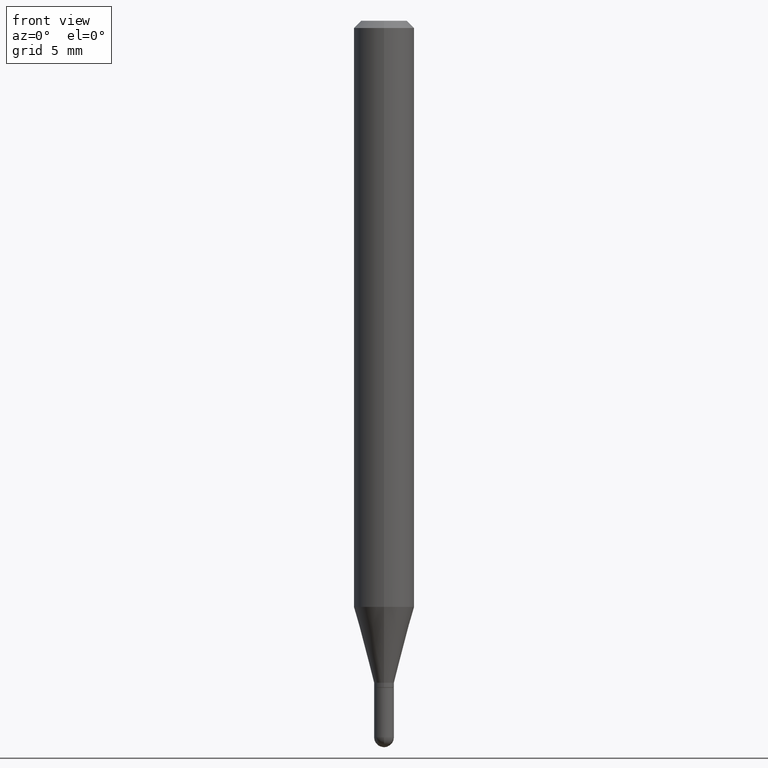
[diagram: clean part render]
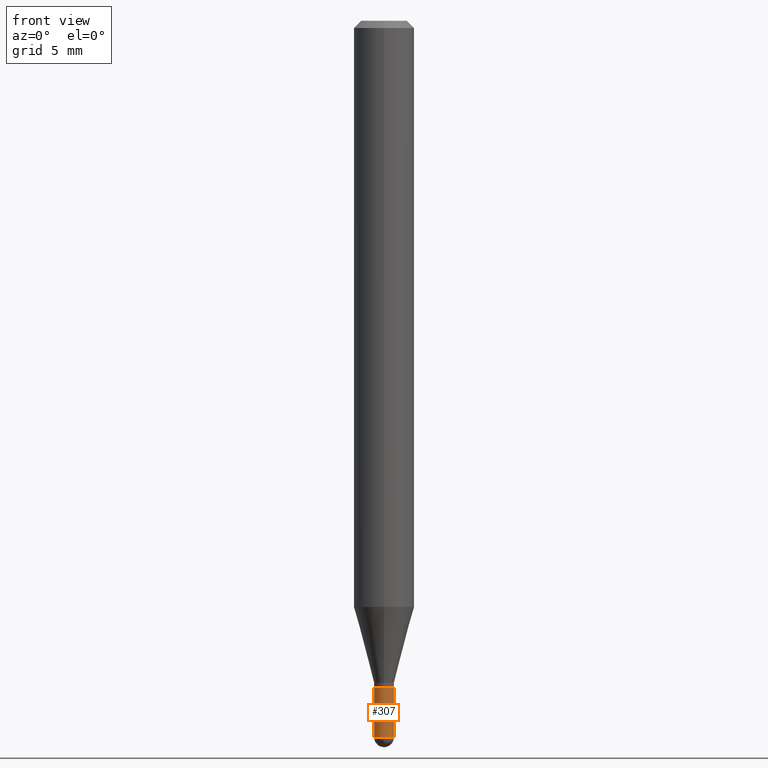
[diagram: same view with one face highlighted and labeled with its STEP entity id]
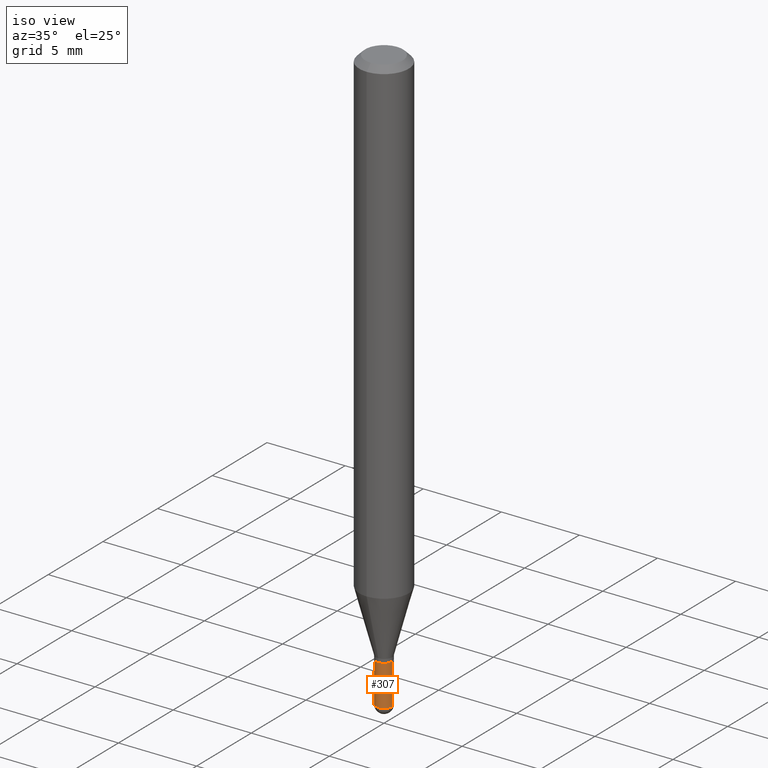
[diagram: same view with one face highlighted and labeled with its STEP entity id]
A machine part, front view. The second image highlights one B-rep face of the part: STEP entity #307.
A second angle (iso view) of the same face is appended — the face is thin or edge-on in the first view.
In plain terms, the highlighted cylindrical surface (edge-blend (fillet) strip) has radius 0.5207 mm, axis along (-0, 0, 1).
Its self-contained STEP definition (entity closure, byte-faithful):
#1 = VERTEX_POINT ( 'NONE', #176 ) ;
#15 = VERTEX_POINT ( 'NONE', #490 ) ;
#30 = LINE ( 'NONE', #111, #58 ) ;
#41 = ORIENTED_EDGE ( 'NONE', *, *, #389, .T. ) ;
#43 = CARTESIAN_POINT ( 'NONE',  ( 3.618071098750910124E-29, -5.165646640818434953E-15, -1.479500000000000259 ) ) ;
#57 = CIRCLE ( 'NONE', #473, 0.02049999999999999392 ) ;
#58 = VECTOR ( 'NONE', #122, 39.37007874015748143 ) ;
#78 = EDGE_LOOP ( 'NONE', ( #163, #85, #41, #249, #81 ) ) ;
#81 = ORIENTED_EDGE ( 'NONE', *, *, #457, .F. ) ;
#85 = ORIENTED_EDGE ( 'NONE', *, *, #278, .T. ) ;
#92 = CIRCLE ( 'NONE', #503, 0.02049999999999999392 ) ;
#111 = CARTESIAN_POINT ( 'NONE',  ( 0.02049999999999999739, -1.431507348925684695E-16, 9.996162390381665713E-31 ) ) ;
#122 = DIRECTION ( 'NONE',  ( -2.445468806185136877E-29, 3.491481338843145188E-15, 1.000000000000000000 ) ) ;
#150 = CARTESIAN_POINT ( 'NONE',  ( -0.02050000000000000086, -4.841046961371903070E-15, -1.377000000000000002 ) ) ;
#152 = CARTESIAN_POINT ( 'NONE',  ( 0.000000000000000000, 0.000000000000000000, 0.000000000000000000 ) ) ;
#156 = DIRECTION ( 'NONE',  ( -2.445468806185136597E-29, 3.491481338843145583E-15, 1.000000000000000000 ) ) ;
#160 = DIRECTION ( 'NONE',  ( 1.000000000000000000, -6.982962677686264344E-15, 0.000000000000000000 ) ) ;
#163 = ORIENTED_EDGE ( 'NONE', *, *, #351, .F. ) ;
#168 = CIRCLE ( 'NONE', #286, 0.02050000000000000086 ) ;
#176 = CARTESIAN_POINT ( 'NONE',  ( 0.02049999999999999392, -5.129858957095291369E-15, -1.479500000000000259 ) ) ;
#224 = VERTEX_POINT ( 'NONE', #453 ) ;
#234 = VERTEX_POINT ( 'NONE', #150 ) ;
#249 = ORIENTED_EDGE ( 'NONE', *, *, #277, .T. ) ;
#250 = DIRECTION ( 'NONE',  ( 1.000000000000000000, -6.982962677686261977E-15, 0.000000000000000000 ) ) ;
#274 = DIRECTION ( 'NONE',  ( 1.000000000000000000, -6.982962677686264344E-15, 0.000000000000000000 ) ) ;
#277 = EDGE_CURVE ( 'NONE', #1, #342, #30, .T. ) ;
#278 = EDGE_CURVE ( 'NONE', #15, #224, #57, .T. ) ;
#279 = CARTESIAN_POINT ( 'NONE',  ( -0.02049999999999999739, 1.456612608308205196E-16, -1.008381693502255444E-30 ) ) ;
#282 = CYLINDRICAL_SURFACE ( 'NONE', #385, 0.02049999999999999739 ) ;
#286 = AXIS2_PLACEMENT_3D ( 'NONE', #366, #401, #250 ) ;
#307 = ADVANCED_FACE ( 'NONE', ( #468 ), #282, .T. ) ;
#342 = VERTEX_POINT ( 'NONE', #349 ) ;
#349 = CARTESIAN_POINT ( 'NONE',  ( 0.02050000000000000086, -4.950920538479579759E-15, -1.377000000000000002 ) ) ;
#351 = EDGE_CURVE ( 'NONE', #15, #234, #505, .T. ) ;
#355 = DIRECTION ( 'NONE',  ( -2.445468806185136597E-29, 3.491481338843145583E-15, 1.000000000000000000 ) ) ;
#366 = CARTESIAN_POINT ( 'NONE',  ( 3.367410546116933466E-29, -4.807769803587011733E-15, -1.377000000000000002 ) ) ;
#385 = AXIS2_PLACEMENT_3D ( 'NONE', #152, #355, #430 ) ;
#387 = VECTOR ( 'NONE', #429, 39.37007874015748143 ) ;
#389 = EDGE_CURVE ( 'NONE', #224, #1, #92, .T. ) ;
#401 = DIRECTION ( 'NONE',  ( -2.445468806185136597E-29, 3.491481338843145583E-15, 1.000000000000000000 ) ) ;
#429 = DIRECTION ( 'NONE',  ( -2.445468806185136877E-29, 3.491481338843145188E-15, 1.000000000000000000 ) ) ;
#430 = DIRECTION ( 'NONE',  ( 1.000000000000000000, -6.982962677686267499E-15, 4.876176775795935232E-29 ) ) ;
#453 = CARTESIAN_POINT ( 'NONE',  ( -1.431507348925326503E-16, -0.02050000000000521891, -1.479500000000000259 ) ) ;
#457 = EDGE_CURVE ( 'NONE', #234, #342, #168, .T. ) ;
#461 = DIRECTION ( 'NONE',  ( -2.445468806185136597E-29, 3.491481338843145583E-15, 1.000000000000000000 ) ) ;
#468 = FACE_OUTER_BOUND ( 'NONE', #78, .T. ) ;
#473 = AXIS2_PLACEMENT_3D ( 'NONE', #43, #461, #160 ) ;
#490 = CARTESIAN_POINT ( 'NONE',  ( -0.02049999999999999392, -4.841046961371903070E-15, -1.479500000000000259 ) ) ;
#503 = AXIS2_PLACEMENT_3D ( 'NONE', #504, #156, #274 ) ;
#504 = CARTESIAN_POINT ( 'NONE',  ( 3.618071098750910124E-29, -5.165646640818434953E-15, -1.479500000000000259 ) ) ;
#505 = LINE ( 'NONE', #279, #387 ) ;